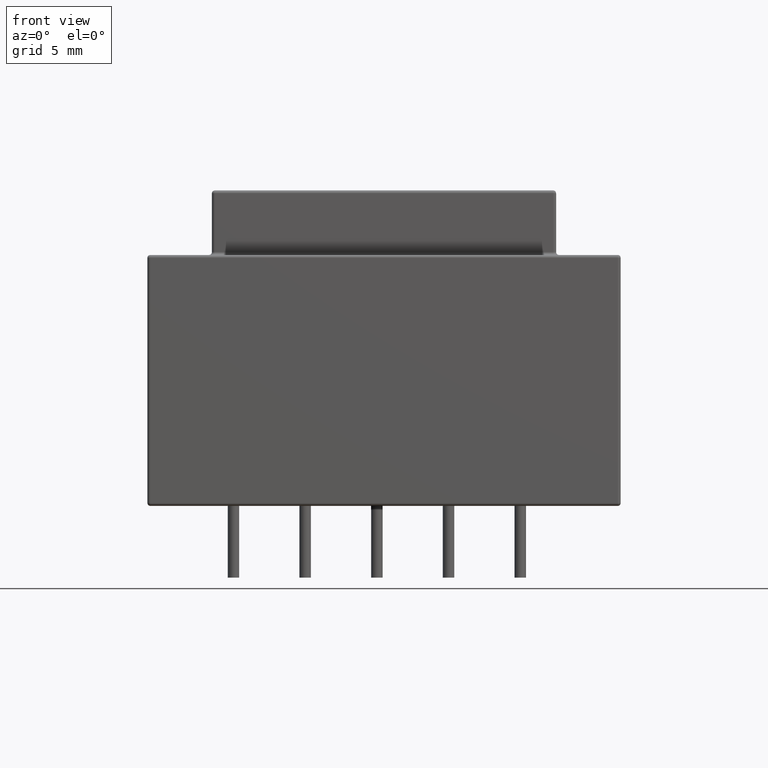
[diagram: clean part render]
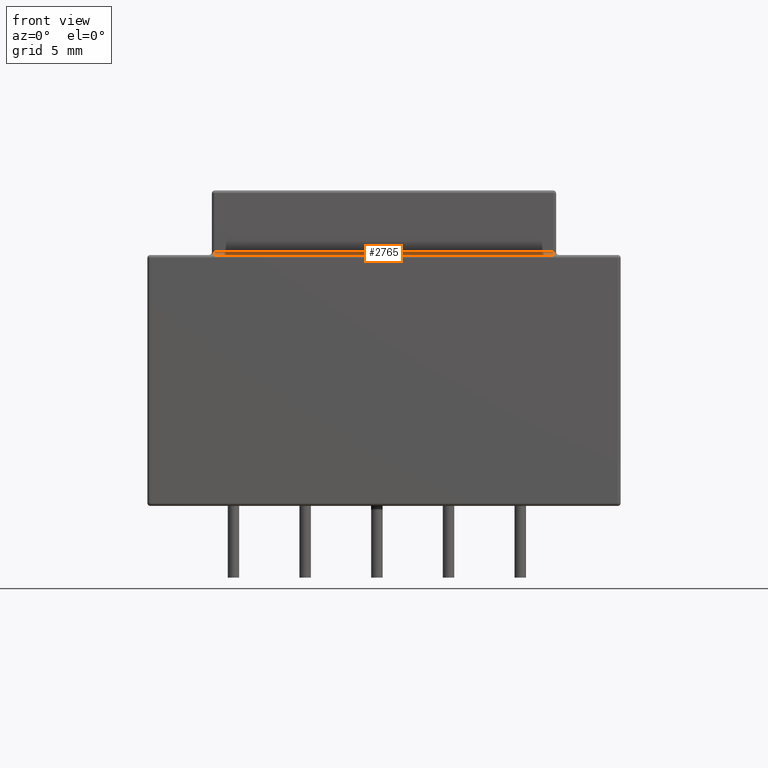
[diagram: same view with one face highlighted and labeled with its STEP entity id]
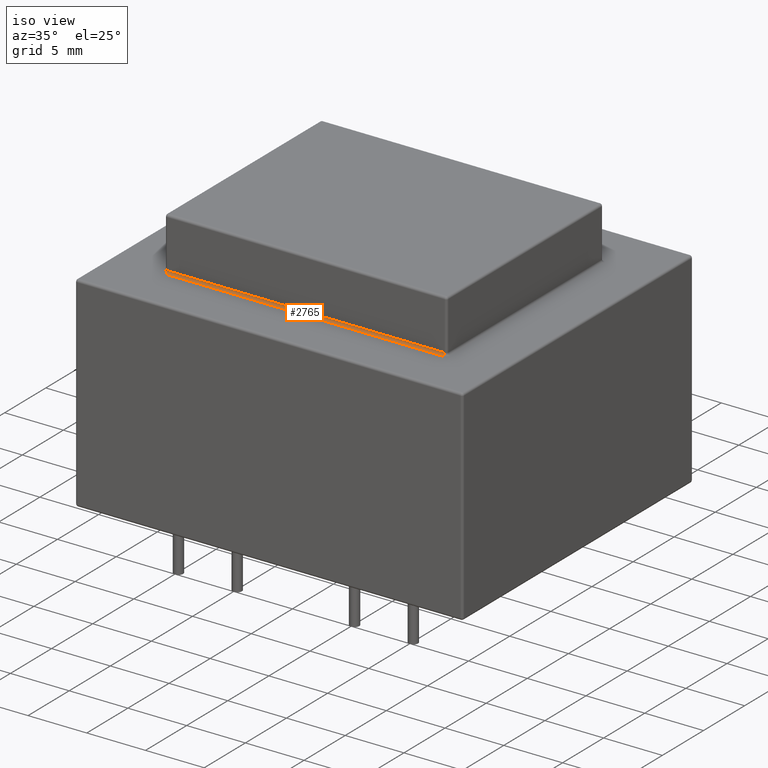
[diagram: same view with one face highlighted and labeled with its STEP entity id]
A machine part, front view. The second image highlights one B-rep face of the part: STEP entity #2765.
A second angle (iso view) of the same face is appended — the face is thin or edge-on in the first view.
In plain terms, the highlighted cylindrical surface (edge-blend (fillet) strip) has radius 0.2 mm, axis along (1, 0, 0).
Its self-contained STEP definition (entity closure, byte-faithful):
#1770 = PLANE('',#1771);
#1771 = AXIS2_PLACEMENT_3D('',#1772,#1773,#1774);
#1772 = CARTESIAN_POINT('',(0.,0.,17.5));
#1773 = DIRECTION('',(0.,0.,1.));
#1774 = DIRECTION('',(1.,0.,0.));
#2208 = VERTEX_POINT('',#2209);
#2209 = CARTESIAN_POINT('',(28.3,4.3,17.5));
#2228 = TOROIDAL_SURFACE('',#2229,0.4,0.2);
#2229 = AXIS2_PLACEMENT_3D('',#2230,#2231,#2232);
#2230 = CARTESIAN_POINT('',(28.3,4.7,17.7));
#2231 = DIRECTION('',(-0.,-0.,-1.));
#2232 = DIRECTION('',(1.,0.,0.));
#2240 = EDGE_CURVE('',#2241,#2208,#2243,.T.);
#2241 = VERTEX_POINT('',#2242);
#2242 = CARTESIAN_POINT('',(4.7,4.3,17.5));
#2243 = SURFACE_CURVE('',#2244,(#2248,#2255),.PCURVE_S1.);
#2244 = LINE('',#2245,#2246);
#2245 = CARTESIAN_POINT('',(4.5,4.3,17.5));
#2246 = VECTOR('',#2247,1.);
#2247 = DIRECTION('',(1.,0.,0.));
#2248 = PCURVE('',#1770,#2249);
#2249 = DEFINITIONAL_REPRESENTATION('',(#2250),#2254);
#2250 = LINE('',#2251,#2252);
#2251 = CARTESIAN_POINT('',(4.5,4.3));
#2252 = VECTOR('',#2253,1.);
#2253 = DIRECTION('',(1.,0.));
#2254 = ( GEOMETRIC_REPRESENTATION_CONTEXT(2) 
PARAMETRIC_REPRESENTATION_CONTEXT() REPRESENTATION_CONTEXT('2D SPACE',''
  ) );
#2255 = PCURVE('',#2256,#2261);
#2256 = CYLINDRICAL_SURFACE('',#2257,0.2);
#2257 = AXIS2_PLACEMENT_3D('',#2258,#2259,#2260);
#2258 = CARTESIAN_POINT('',(4.5,4.3,17.7));
#2259 = DIRECTION('',(1.,0.,0.));
#2260 = DIRECTION('',(0.,0.,-1.));
#2261 = DEFINITIONAL_REPRESENTATION('',(#2262),#2266);
#2262 = LINE('',#2263,#2264);
#2263 = CARTESIAN_POINT('',(0.,0.));
#2264 = VECTOR('',#2265,1.);
#2265 = DIRECTION('',(0.,1.));
#2266 = ( GEOMETRIC_REPRESENTATION_CONTEXT(2) 
PARAMETRIC_REPRESENTATION_CONTEXT() REPRESENTATION_CONTEXT('2D SPACE',''
  ) );
#2285 = TOROIDAL_SURFACE('',#2286,0.4,0.2);
#2286 = AXIS2_PLACEMENT_3D('',#2287,#2288,#2289);
#2287 = CARTESIAN_POINT('',(4.7,4.7,17.7));
#2288 = DIRECTION('',(-0.,-0.,-1.));
#2289 = DIRECTION('',(-1.,0.,0.));
#2663 = EDGE_CURVE('',#2241,#2664,#2666,.T.);
#2664 = VERTEX_POINT('',#2665);
#2665 = CARTESIAN_POINT('',(4.7,4.5,17.7));
#2666 = SURFACE_CURVE('',#2667,(#2672,#2678),.PCURVE_S1.);
#2667 = CIRCLE('',#2668,0.2);
#2668 = AXIS2_PLACEMENT_3D('',#2669,#2670,#2671);
#2669 = CARTESIAN_POINT('',(4.7,4.3,17.7));
#2670 = DIRECTION('',(1.,-6.123233995737E-17,0.));
#2671 = DIRECTION('',(-6.123233995737E-17,-1.,0.));
#2672 = PCURVE('',#2285,#2673);
#2673 = DEFINITIONAL_REPRESENTATION('',(#2674),#2677);
#2674 = B_SPLINE_CURVE_WITH_KNOTS('',1,(#2675,#2676),.UNSPECIFIED.,.F.,
  .F.,(2,2),(1.570796326795,3.14159265359),.PIECEWISE_BEZIER_KNOTS.);
#2675 = CARTESIAN_POINT('',(-1.570796326795,1.570796326795));
#2676 = CARTESIAN_POINT('',(-1.570796326795,3.14159265359));
#2677 = ( GEOMETRIC_REPRESENTATION_CONTEXT(2) 
PARAMETRIC_REPRESENTATION_CONTEXT() REPRESENTATION_CONTEXT('2D SPACE',''
  ) );
#2678 = PCURVE('',#2256,#2679);
#2679 = DEFINITIONAL_REPRESENTATION('',(#2680),#2683);
#2680 = B_SPLINE_CURVE_WITH_KNOTS('',1,(#2681,#2682),.UNSPECIFIED.,.F.,
  .F.,(2,2),(1.570796326795,3.14159265359),.PIECEWISE_BEZIER_KNOTS.);
#2681 = CARTESIAN_POINT('',(0.,0.2));
#2682 = CARTESIAN_POINT('',(1.570796326795,0.2));
#2683 = ( GEOMETRIC_REPRESENTATION_CONTEXT(2) 
PARAMETRIC_REPRESENTATION_CONTEXT() REPRESENTATION_CONTEXT('2D SPACE',''
  ) );
#2717 = EDGE_CURVE('',#2208,#2718,#2720,.T.);
#2718 = VERTEX_POINT('',#2719);
#2719 = CARTESIAN_POINT('',(28.3,4.5,17.7));
#2720 = SURFACE_CURVE('',#2721,(#2726,#2732),.PCURVE_S1.);
#2721 = CIRCLE('',#2722,0.2);
#2722 = AXIS2_PLACEMENT_3D('',#2723,#2724,#2725);
#2723 = CARTESIAN_POINT('',(28.3,4.3,17.7));
#2724 = DIRECTION('',(1.,6.123233995737E-17,0.));
#2725 = DIRECTION('',(6.123233995737E-17,-1.,0.));
#2726 = PCURVE('',#2228,#2727);
#2727 = DEFINITIONAL_REPRESENTATION('',(#2728),#2731);
#2728 = B_SPLINE_CURVE_WITH_KNOTS('',1,(#2729,#2730),.UNSPECIFIED.,.F.,
  .F.,(2,2),(1.570796326795,3.14159265359),.PIECEWISE_BEZIER_KNOTS.);
#2729 = CARTESIAN_POINT('',(1.570796326795,1.570796326795));
#2730 = CARTESIAN_POINT('',(1.570796326795,3.14159265359));
#2731 = ( GEOMETRIC_REPRESENTATION_CONTEXT(2) 
PARAMETRIC_REPRESENTATION_CONTEXT() REPRESENTATION_CONTEXT('2D SPACE',''
  ) );
#2732 = PCURVE('',#2256,#2733);
#2733 = DEFINITIONAL_REPRESENTATION('',(#2734),#2737);
#2734 = B_SPLINE_CURVE_WITH_KNOTS('',1,(#2735,#2736),.UNSPECIFIED.,.F.,
  .F.,(2,2),(1.570796326795,3.14159265359),.PIECEWISE_BEZIER_KNOTS.);
#2735 = CARTESIAN_POINT('',(0.,23.8));
#2736 = CARTESIAN_POINT('',(1.570796326795,23.8));
#2737 = ( GEOMETRIC_REPRESENTATION_CONTEXT(2) 
PARAMETRIC_REPRESENTATION_CONTEXT() REPRESENTATION_CONTEXT('2D SPACE',''
  ) );
#2765 = ADVANCED_FACE('',(#2766),#2256,.F.);
#2766 = FACE_BOUND('',#2767,.F.);
#2767 = EDGE_LOOP('',(#2768,#2769,#2795,#2796));
#2768 = ORIENTED_EDGE('',*,*,#2663,.T.);
#2769 = ORIENTED_EDGE('',*,*,#2770,.T.);
#2770 = EDGE_CURVE('',#2664,#2718,#2771,.T.);
#2771 = SURFACE_CURVE('',#2772,(#2776,#2783),.PCURVE_S1.);
#2772 = LINE('',#2773,#2774);
#2773 = CARTESIAN_POINT('',(4.5,4.5,17.7));
#2774 = VECTOR('',#2775,1.);
#2775 = DIRECTION('',(1.,0.,0.));
#2776 = PCURVE('',#2256,#2777);
#2777 = DEFINITIONAL_REPRESENTATION('',(#2778),#2782);
#2778 = LINE('',#2779,#2780);
#2779 = CARTESIAN_POINT('',(1.570796326795,0.));
#2780 = VECTOR('',#2781,1.);
#2781 = DIRECTION('',(0.,1.));
#2782 = ( GEOMETRIC_REPRESENTATION_CONTEXT(2) 
PARAMETRIC_REPRESENTATION_CONTEXT() REPRESENTATION_CONTEXT('2D SPACE',''
  ) );
#2783 = PCURVE('',#2784,#2789);
#2784 = PLANE('',#2785);
#2785 = AXIS2_PLACEMENT_3D('',#2786,#2787,#2788);
#2786 = CARTESIAN_POINT('',(4.5,4.5,17.5));
#2787 = DIRECTION('',(0.,1.,0.));
#2788 = DIRECTION('',(0.,0.,1.));
#2789 = DEFINITIONAL_REPRESENTATION('',(#2790),#2794);
#2790 = LINE('',#2791,#2792);
#2791 = CARTESIAN_POINT('',(0.2,0.));
#2792 = VECTOR('',#2793,1.);
#2793 = DIRECTION('',(0.,1.));
#2794 = ( GEOMETRIC_REPRESENTATION_CONTEXT(2) 
PARAMETRIC_REPRESENTATION_CONTEXT() REPRESENTATION_CONTEXT('2D SPACE',''
  ) );
#2795 = ORIENTED_EDGE('',*,*,#2717,.F.);
#2796 = ORIENTED_EDGE('',*,*,#2240,.F.);